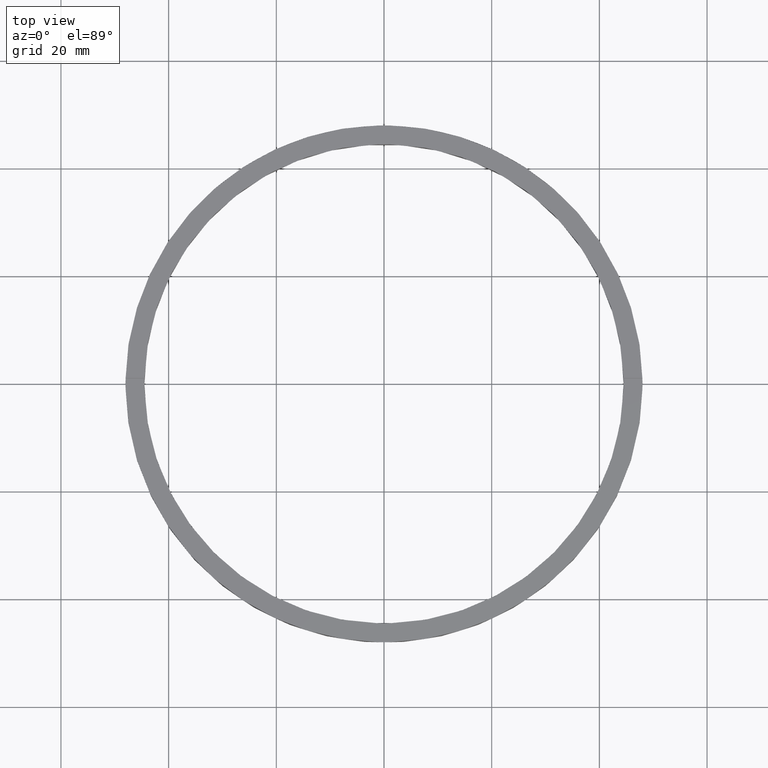
[diagram: clean part render]
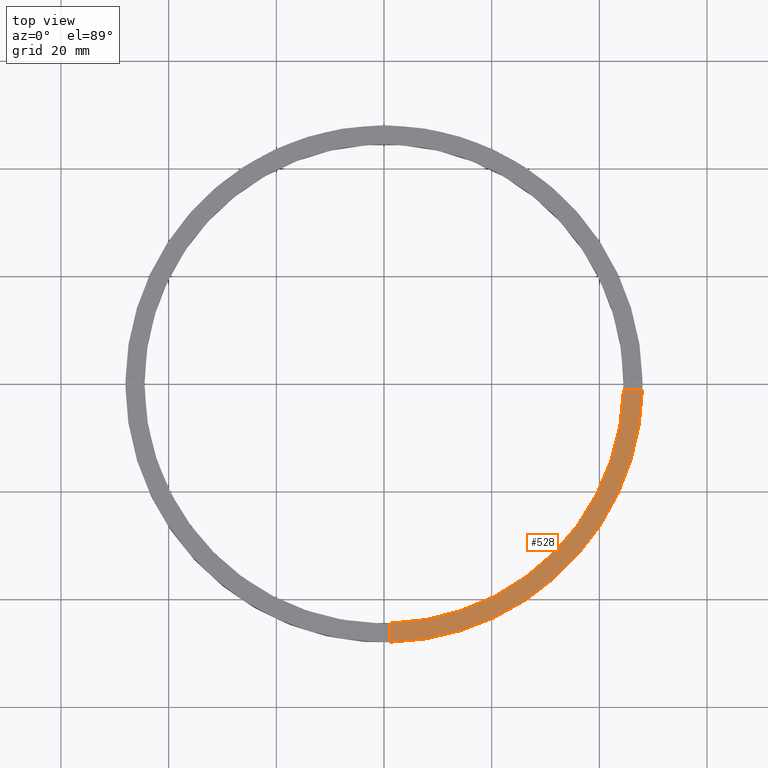
[diagram: same view with one face highlighted and labeled with its STEP entity id]
A machine part, top view. The second image highlights one B-rep face of the part: STEP entity #528.
In plain terms, the highlighted planar face has unit normal (0, 0, 1).
Its self-contained STEP definition (entity closure, byte-faithful):
#8 = CARTESIAN_POINT ( 'NONE',  ( 38.00000000000000000, -1.000000000000156097, 4.500000000000000000 ) ) ;
#90 = AXIS2_PLACEMENT_3D ( 'NONE', #230, #317, #500 ) ;
#95 = CARTESIAN_POINT ( 'NONE',  ( 0.9999999999998423483, -44.48876262608346366, 4.500000000000000000 ) ) ;
#104 = DIRECTION ( 'NONE',  ( 1.000000000000000000, 0.000000000000000000, 0.000000000000000000 ) ) ;
#126 = VECTOR ( 'NONE', #352, 1000.000000000000000 ) ;
#135 = PLANE ( 'NONE',  #640 ) ;
#166 = VERTEX_POINT ( 'NONE', #332 ) ;
#212 = EDGE_CURVE ( 'NONE', #742, #709, #389, .T. ) ;
#216 = DIRECTION ( 'NONE',  ( 1.000000000000000000, 0.000000000000000000, -0.000000000000000000 ) ) ;
#221 = CARTESIAN_POINT ( 'NONE',  ( 44.48876262608345655, -1.000000000000155653, 4.500000000000000000 ) ) ;
#230 = CARTESIAN_POINT ( 'NONE',  ( 0.000000000000000000, 0.000000000000000000, 4.500000000000000000 ) ) ;
#247 = EDGE_LOOP ( 'NONE', ( #718, #273, #714, #280 ) ) ;
#273 = ORIENTED_EDGE ( 'NONE', *, *, #406, .F. ) ;
#280 = ORIENTED_EDGE ( 'NONE', *, *, #402, .T. ) ;
#317 = DIRECTION ( 'NONE',  ( 0.000000000000000000, 0.000000000000000000, 1.000000000000000000 ) ) ;
#332 = CARTESIAN_POINT ( 'NONE',  ( 47.98958220280731268, -1.000000000000155431, 4.500000000000000000 ) ) ;
#352 = DIRECTION ( 'NONE',  ( -1.301042606982605074E-16, 1.000000000000000000, -0.000000000000000000 ) ) ;
#389 = LINE ( 'NONE', #607, #126 ) ;
#402 = EDGE_CURVE ( 'NONE', #742, #166, #538, .T. ) ;
#406 = EDGE_CURVE ( 'NONE', #709, #506, #512, .T. ) ;
#421 = AXIS2_PLACEMENT_3D ( 'NONE', #572, #427, #104 ) ;
#427 = DIRECTION ( 'NONE',  ( 0.000000000000000000, 0.000000000000000000, 1.000000000000000000 ) ) ;
#433 = EDGE_CURVE ( 'NONE', #506, #166, #758, .T. ) ;
#500 = DIRECTION ( 'NONE',  ( 1.000000000000000000, 0.000000000000000000, 0.000000000000000000 ) ) ;
#506 = VERTEX_POINT ( 'NONE', #221 ) ;
#512 = CIRCLE ( 'NONE', #90, 44.50000000000000711 ) ;
#528 = ADVANCED_FACE ( 'NONE', ( #780 ), #135, .T. ) ;
#538 = CIRCLE ( 'NONE', #421, 48.00000000000000711 ) ;
#539 = CARTESIAN_POINT ( 'NONE',  ( 0.000000000000000000, 0.000000000000000000, 4.500000000000000000 ) ) ;
#572 = CARTESIAN_POINT ( 'NONE',  ( 0.000000000000000000, 0.000000000000000000, 4.500000000000000000 ) ) ;
#605 = DIRECTION ( 'NONE',  ( 0.000000000000000000, 0.000000000000000000, 1.000000000000000000 ) ) ;
#607 = CARTESIAN_POINT ( 'NONE',  ( 0.9999999999998414602, -38.00000000000018474, 4.500000000000000000 ) ) ;
#640 = AXIS2_PLACEMENT_3D ( 'NONE', #539, #605, #216 ) ;
#672 = DIRECTION ( 'NONE',  ( 1.000000000000000000, 6.505213034913025371E-17, 0.000000000000000000 ) ) ;
#688 = CARTESIAN_POINT ( 'NONE',  ( 0.9999999999998427924, -47.98958220280731979, 4.500000000000000000 ) ) ;
#709 = VERTEX_POINT ( 'NONE', #95 ) ;
#714 = ORIENTED_EDGE ( 'NONE', *, *, #212, .F. ) ;
#718 = ORIENTED_EDGE ( 'NONE', *, *, #433, .F. ) ;
#742 = VERTEX_POINT ( 'NONE', #688 ) ;
#758 = LINE ( 'NONE', #8, #782 ) ;
#780 = FACE_OUTER_BOUND ( 'NONE', #247, .T. ) ;
#782 = VECTOR ( 'NONE', #672, 1000.000000000000000 ) ;